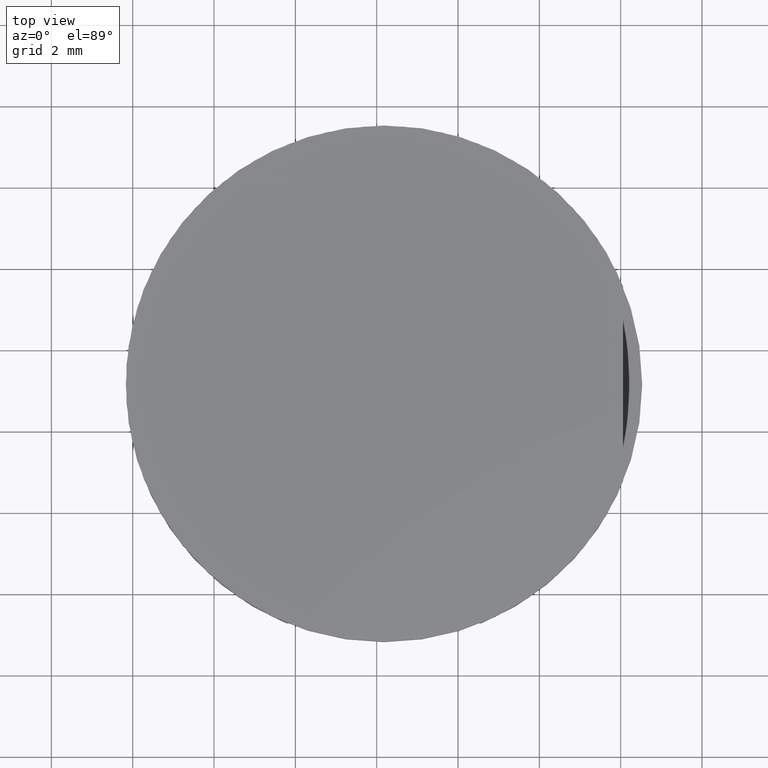
[diagram: clean part render]
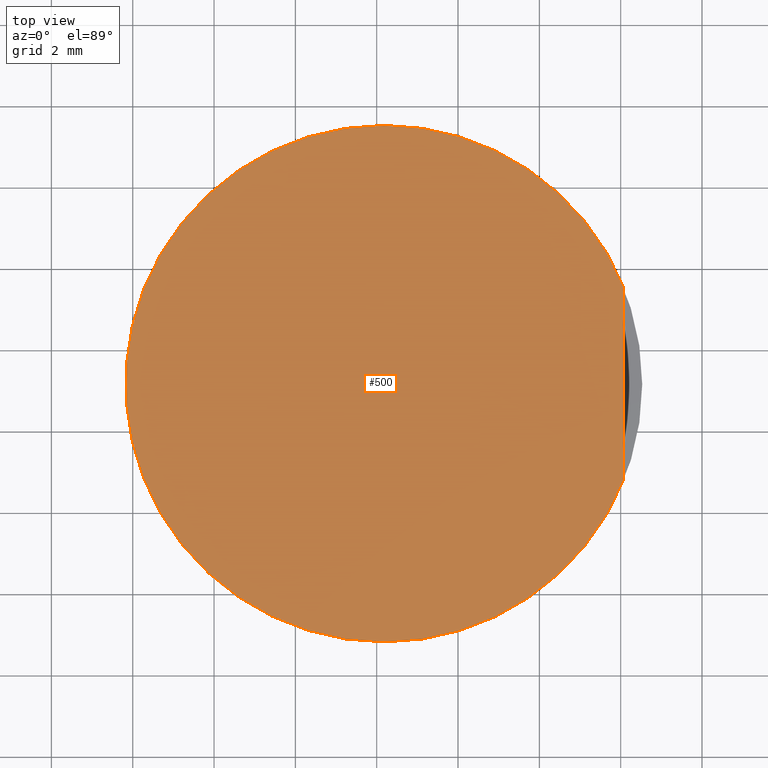
[diagram: same view with one face highlighted and labeled with its STEP entity id]
A machine part, top view. The second image highlights one B-rep face of the part: STEP entity #500.
In plain terms, the highlighted planar face has unit normal (0, -0, 1).
Its self-contained STEP definition (entity closure, byte-faithful):
#17 = EDGE_CURVE ( 'NONE', #458, #419, #405, .T. ) ;
#38 = CIRCLE ( 'NONE', #232, 6.349999999999999645 ) ;
#40 = VERTEX_POINT ( 'NONE', #174 ) ;
#47 = DIRECTION ( 'NONE',  ( 1.110223024625156294E-16, 1.000000000000000000, 0.0000000000000000000 ) ) ;
#56 = DIRECTION ( 'NONE',  ( 0.0000000000000000000, -0.0000000000000000000, 1.000000000000000000 ) ) ;
#63 = CARTESIAN_POINT ( 'NONE',  ( 12.17957565082418014, -7.179902614356014290, 4.486184743181586221 ) ) ;
#71 = DIRECTION ( 'NONE',  ( 0.0000000000000000000, 0.0000000000000000000, 1.000000000000000000 ) ) ;
#87 = DIRECTION ( 'NONE',  ( 0.0000000000000000000, 0.0000000000000000000, 1.000000000000000000 ) ) ;
#102 = AXIS2_PLACEMENT_3D ( 'NONE', #435, #56, #47 ) ;
#114 = CARTESIAN_POINT ( 'NONE',  ( 18.05957565082417915, -3.227422165892561257, 4.486184743181586221 ) ) ;
#159 = EDGE_CURVE ( 'NONE', #40, #458, #38, .T. ) ;
#160 = CARTESIAN_POINT ( 'NONE',  ( 18.05957565082417915, -6.717240688047029451, 4.486184743181586221 ) ) ;
#174 = CARTESIAN_POINT ( 'NONE',  ( 12.17957565082418014, 5.520097385643985000, 4.486184743181586221 ) ) ;
#180 = DIRECTION ( 'NONE',  ( 0.0000000000000000000, 0.0000000000000000000, 1.000000000000000000 ) ) ;
#230 = VECTOR ( 'NONE', #331, 1000.000000000000000 ) ;
#232 = AXIS2_PLACEMENT_3D ( 'NONE', #312, #180, #447 ) ;
#238 = CARTESIAN_POINT ( 'NONE',  ( 12.17957565082418014, -0.8299026143560144231, 4.486184743181586221 ) ) ;
#251 = CIRCLE ( 'NONE', #422, 6.349999999999999645 ) ;
#252 = EDGE_CURVE ( 'NONE', #337, #419, #302, .T. ) ;
#274 = PLANE ( 'NONE',  #102 ) ;
#301 = ORIENTED_EDGE ( 'NONE', *, *, #379, .T. ) ;
#302 = LINE ( 'NONE', #160, #230 ) ;
#312 = CARTESIAN_POINT ( 'NONE',  ( 12.17957565082418014, -0.8299026143560144231, 4.486184743181586221 ) ) ;
#331 = DIRECTION ( 'NONE',  ( -1.110223024625156294E-16, -1.000000000000000000, -0.0000000000000000000 ) ) ;
#337 = VERTEX_POINT ( 'NONE', #484 ) ;
#372 = ORIENTED_EDGE ( 'NONE', *, *, #252, .F. ) ;
#379 = EDGE_CURVE ( 'NONE', #337, #40, #251, .T. ) ;
#405 = CIRCLE ( 'NONE', #410, 6.349999999999999645 ) ;
#410 = AXIS2_PLACEMENT_3D ( 'NONE', #550, #87, #518 ) ;
#419 = VERTEX_POINT ( 'NONE', #114 ) ;
#422 = AXIS2_PLACEMENT_3D ( 'NONE', #238, #71, #454 ) ;
#435 = CARTESIAN_POINT ( 'NONE',  ( 12.17957565082418014, -0.8299026143560144231, 4.486184743181586221 ) ) ;
#447 = DIRECTION ( 'NONE',  ( 0.0000000000000000000, 1.000000000000000000, 0.0000000000000000000 ) ) ;
#454 = DIRECTION ( 'NONE',  ( 0.0000000000000000000, 1.000000000000000000, 0.0000000000000000000 ) ) ;
#455 = ORIENTED_EDGE ( 'NONE', *, *, #17, .T. ) ;
#458 = VERTEX_POINT ( 'NONE', #63 ) ;
#459 = ORIENTED_EDGE ( 'NONE', *, *, #159, .T. ) ;
#484 = CARTESIAN_POINT ( 'NONE',  ( 18.05957565082417915, 1.567616937180531078, 4.486184743181586221 ) ) ;
#500 = ADVANCED_FACE ( 'NONE', ( #521 ), #274, .T. ) ;
#509 = EDGE_LOOP ( 'NONE', ( #372, #301, #459, #455 ) ) ;
#518 = DIRECTION ( 'NONE',  ( 0.0000000000000000000, 1.000000000000000000, 0.0000000000000000000 ) ) ;
#521 = FACE_OUTER_BOUND ( 'NONE', #509, .T. ) ;
#550 = CARTESIAN_POINT ( 'NONE',  ( 12.17957565082418014, -0.8299026143560144231, 4.486184743181586221 ) ) ;